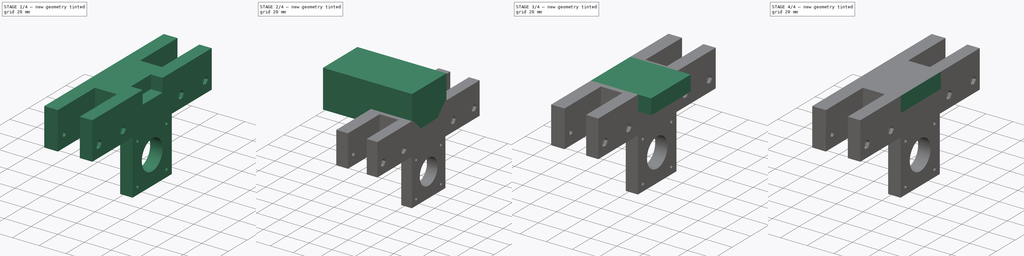
[diagram: build sequence overview — one tinted view per stage of 4, left to right]
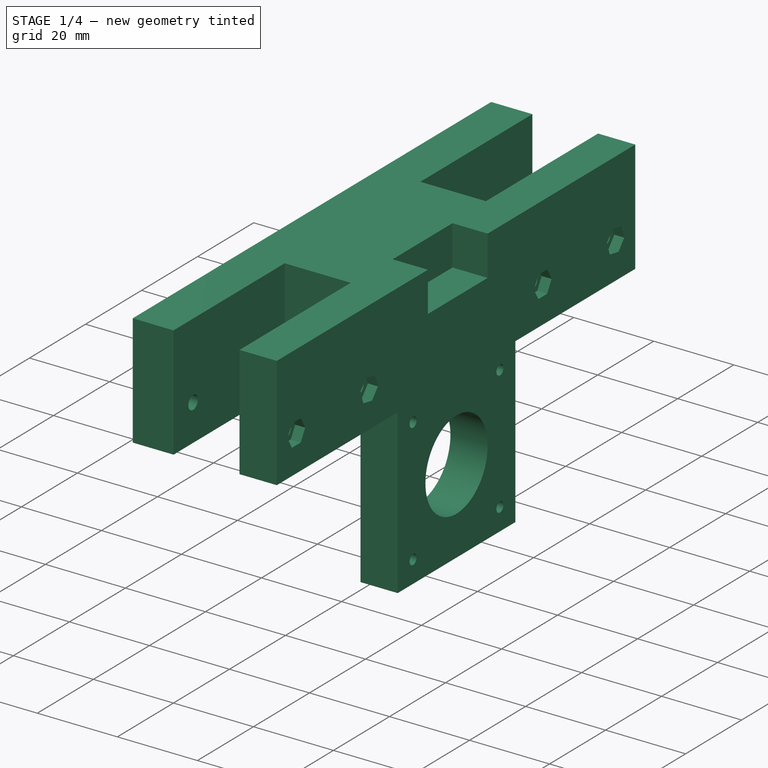
[diagram: stage 1 of 4 — iso view after this stage's code; geometry added in this stage tinted green]
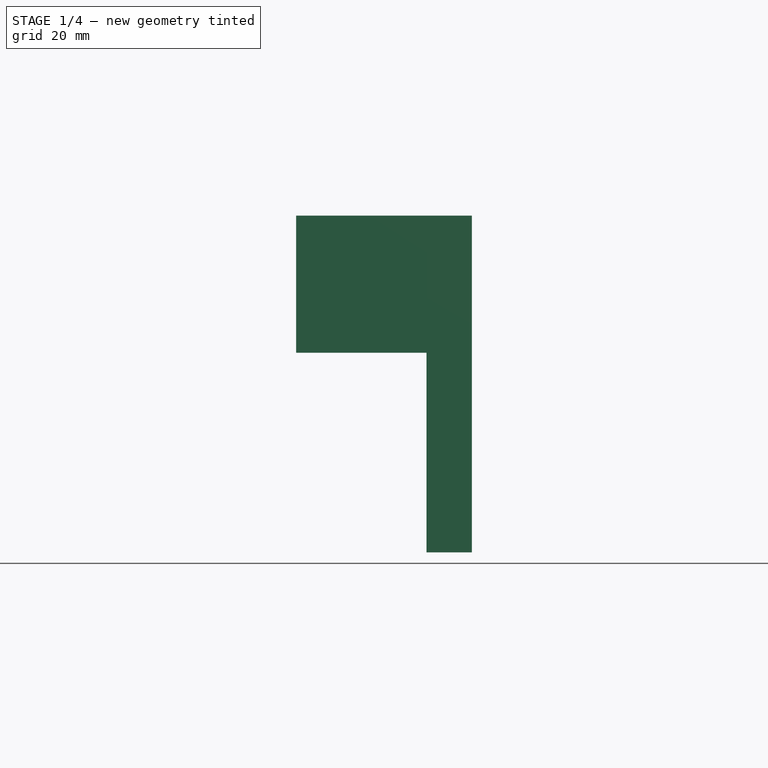
[diagram: stage 1 of 4 — front view after this stage's code; geometry added in this stage tinted green]
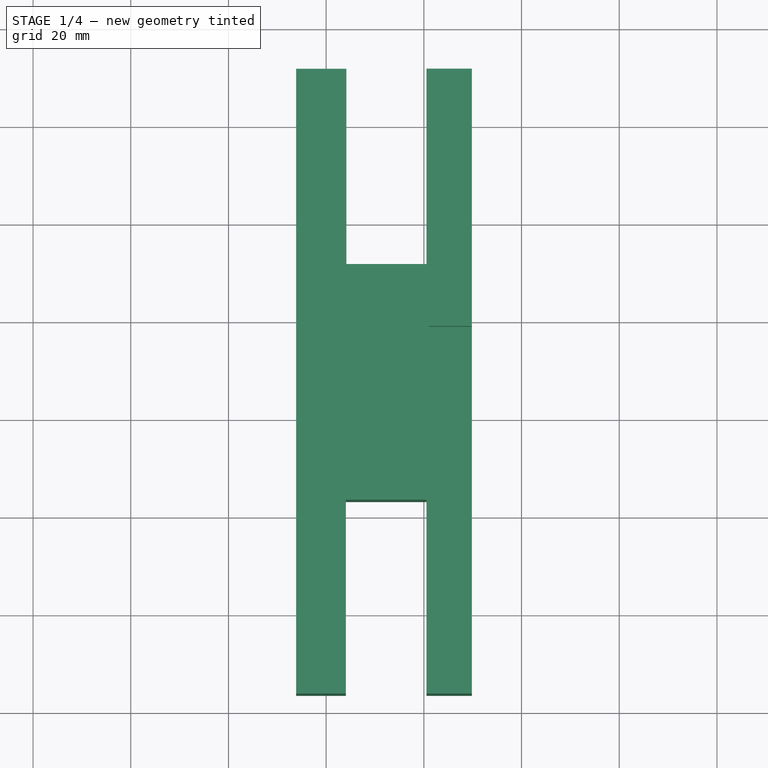
[diagram: stage 1 of 4 — top view after this stage's code; geometry added in this stage tinted green]
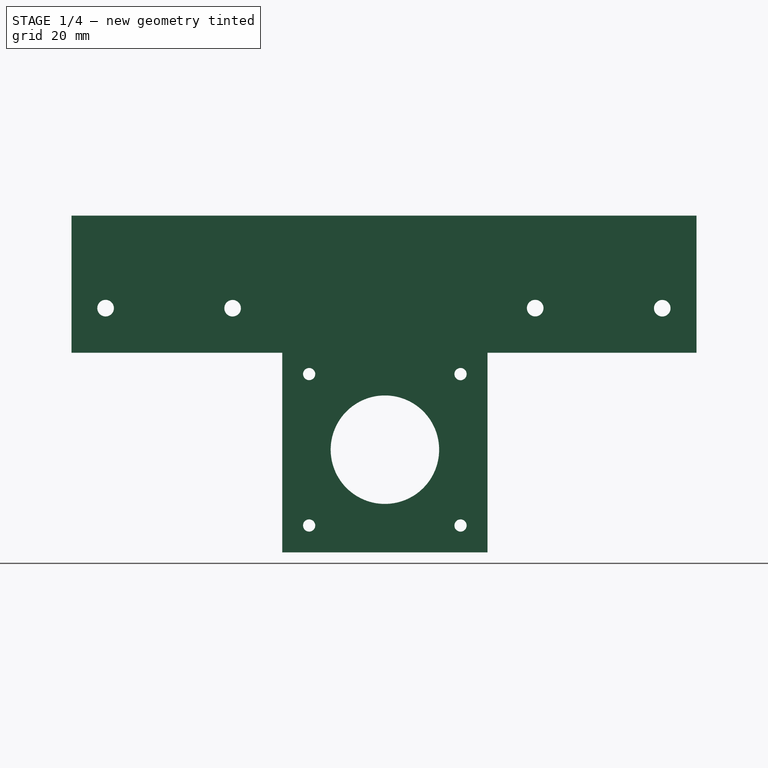
[diagram: stage 1 of 4 — right view after this stage's code; geometry added in this stage tinted green]
FCSTD DOCUMENT  (FreeCAD 0.21R33668 +26 (Git))
Label: Leadscrew_mount_back
License: All rights reserved
LicenseURL: http://en.wikipedia.org/wiki/All_rights_reserved
objects: PartDesign::Pocket×7, PartDesign::Pad×4, Sketcher::SketchObject×2, Part::Feature×1, PartDesign::FeatureBase×1, PartDesign::Chamfer×1, PartDesign::Body×1
note: 29 computed .brp shape members not serialized (recipe doc carries the construction recipe); baked Part::Feature solids carry a one-line shape summary decoded from their .brp

FEATURE [Part::Feature] Pad001
  shape: bbox 36 x 128.1 x 66.91 mm, 72 faces (baked)
FEATURE [PartDesign::FeatureBase] BaseFeature
  BaseFeature = -> Pad001
FEATURE [PartDesign::Pad] Pad
  BaseFeature = -> BaseFeature
  Direction = (0,0,4606.84)
  Length = 10
  Length2 = 10
  Profile = -> BaseFeature [Face7]
  Refine = true
  Type = 0
FEATURE [Sketcher::SketchObject] Sketch
  FullyConstrained = false
  MapMode = 5
  Placement = pos=(0,0,32.566) rot=(0,0,1;0rad)
  sketch-geometry (4):
    g0: LineSegment StartX=56.3807 StartY=-43.223 StartZ=0 EndX=56.3807 EndY=-21.8929 EndZ=0
    g1: LineSegment StartX=56.3807 StartY=-21.8929 StartZ=0 EndX=41.0405 EndY=-21.8929 EndZ=0
    g2: LineSegment StartX=41.0405 StartY=-21.8929 StartZ=0 EndX=41.0405 EndY=-43.223 EndZ=0
    g3: LineSegment StartX=41.0405 StartY=-43.223 StartZ=0 EndX=56.3807 EndY=-43.223 EndZ=0
  constraints (8):
    c: Coincident(g0,g1)
    c: Coincident(g1,g2)
    c: Coincident(g2,g3)
    c: Coincident(g3,g0)
    c: Vertical(g0)
    c: Vertical(g2)
    c: Horizontal(g1)
    c: Horizontal(g3)
FEATURE [PartDesign::Pocket] Pocket
  BaseFeature = -> Pad
  Direction = (0,0,-1)
  Length = 10
  Length2 = 5
  Profile = -> Sketch
  ReferenceAxis = -> Sketch [N_Axis]
  Refine = true
  Reversed = true
  Type = 0
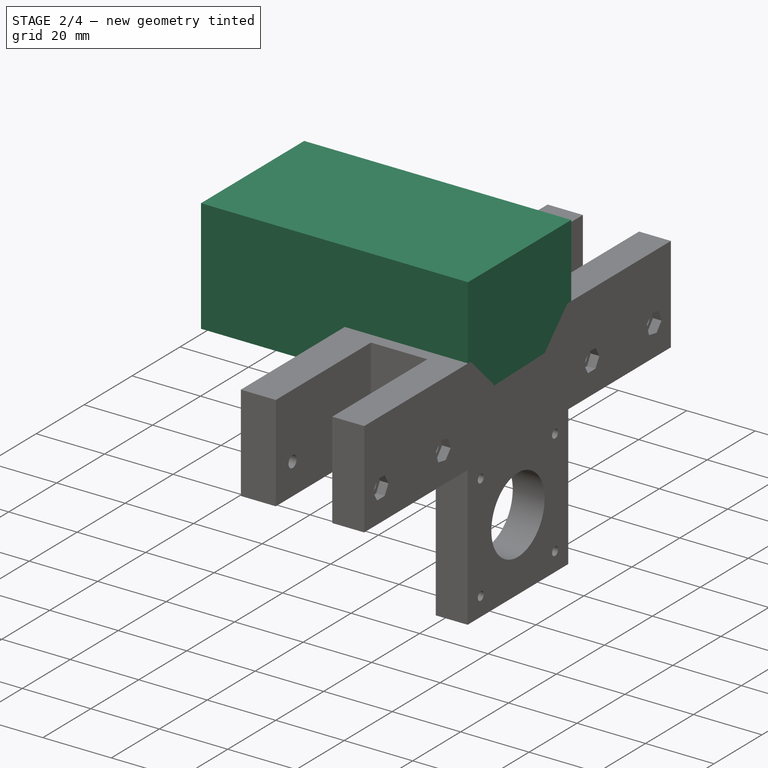
[diagram: stage 2 of 4 — iso view after this stage's code; geometry added in this stage tinted green]
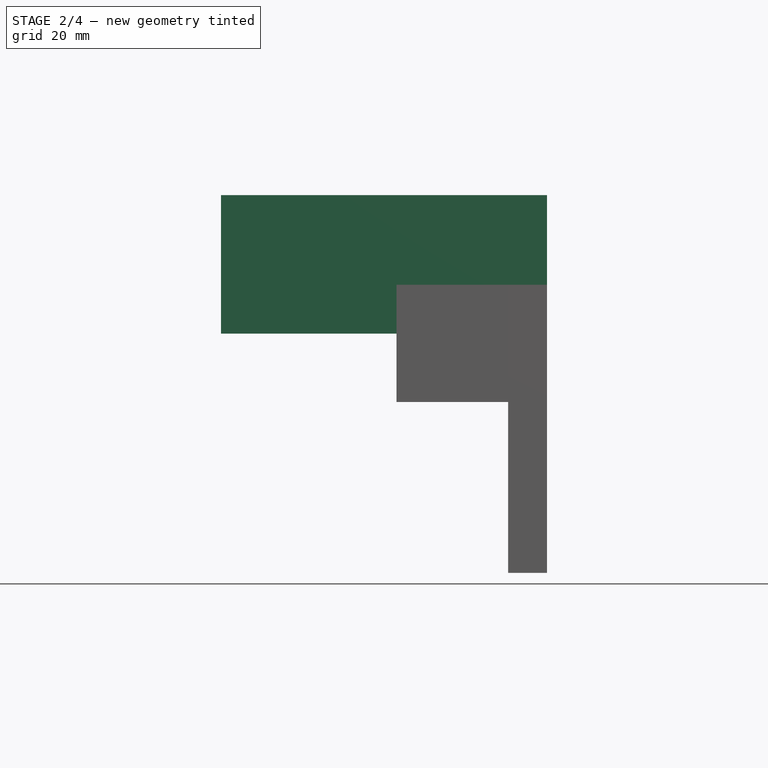
[diagram: stage 2 of 4 — front view after this stage's code; geometry added in this stage tinted green]
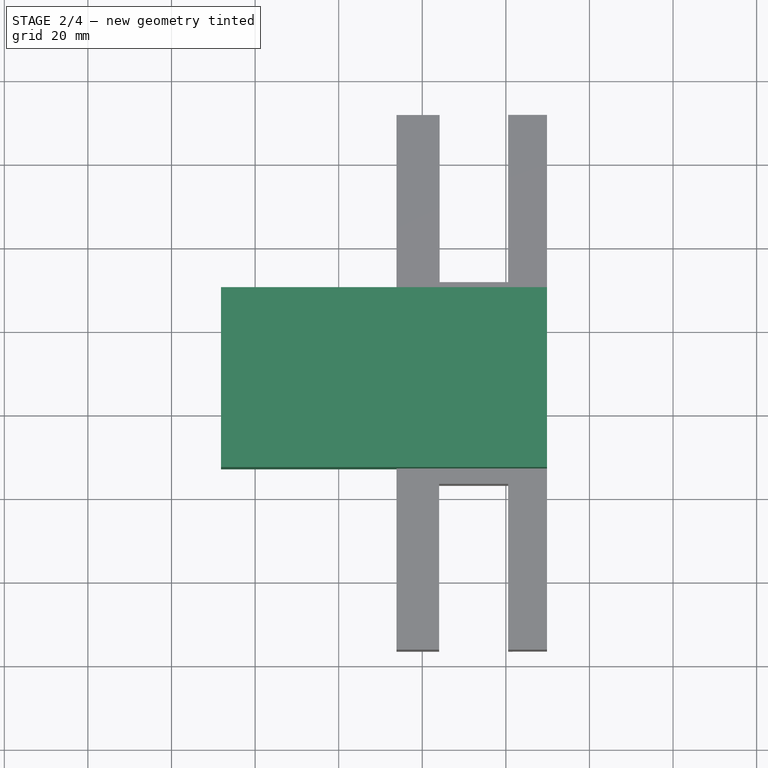
[diagram: stage 2 of 4 — top view after this stage's code; geometry added in this stage tinted green]
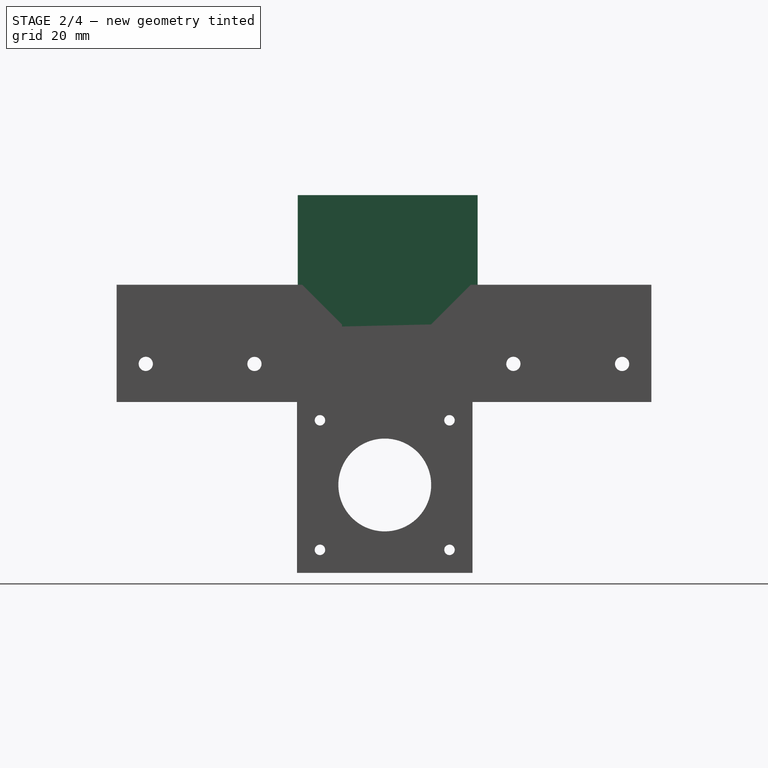
[diagram: stage 2 of 4 — right view after this stage's code; geometry added in this stage tinted green]
FEATURE [PartDesign::Pocket] Pocket001
  BaseFeature = -> Pocket
  Direction = (-1,0,0)
  Length = 34
  Length2 = 5
  Profile = -> Pocket [Face83]
  Refine = true
  Type = 0
FEATURE [PartDesign::Chamfer] Chamfer
  Angle = 45
  Base = -> Pocket001 [Edge135,Edge146]
  BaseFeature = -> Pocket001
  ChamferType = 0
  FlipDirection = false
  Refine = true
  Size = 9.5
  Size2 = 1
  SupportTransform = false
  UseAllEdges = false
FEATURE [Sketcher::SketchObject] Sketch001
  FullyConstrained = false
  MapMode = 5
  Placement = pos=(49.8422,0,0) rot=(0.57735,0.57735,0.57735;2.0944rad)
  Support = -> [Chamfer]
  sketch-geometry (4):
    g0: LineSegment StartX=-53.8184 StartY=30.8514 StartZ=0 EndX=-10.7748 EndY=30.8514 EndZ=0
    g1: LineSegment StartX=-10.7748 StartY=30.8514 StartZ=0 EndX=-10.7748 EndY=63.992 EndZ=0
    g2: LineSegment StartX=-10.7748 StartY=63.992 StartZ=0 EndX=-53.8184 EndY=63.992 EndZ=0
    g3: LineSegment StartX=-53.8184 StartY=63.992 StartZ=0 EndX=-53.8184 EndY=30.8514 EndZ=0
  constraints (8):
    c: Coincident(g0,g1)
    c: Coincident(g1,g2)
    c: Coincident(g2,g3)
    c: Coincident(g3,g0)
    c: Horizontal(g0)
    c: Horizontal(g2)
    c: Vertical(g1)
    c: Vertical(g3)
FEATURE [PartDesign::Pad] Pad002
  BaseFeature = -> Chamfer
  Direction = (1,0,0)
  Length = 78
  Length2 = 10
  Profile = -> Sketch001
  ReferenceAxis = -> Sketch001 [N_Axis]
  Reversed = true
  Type = 0
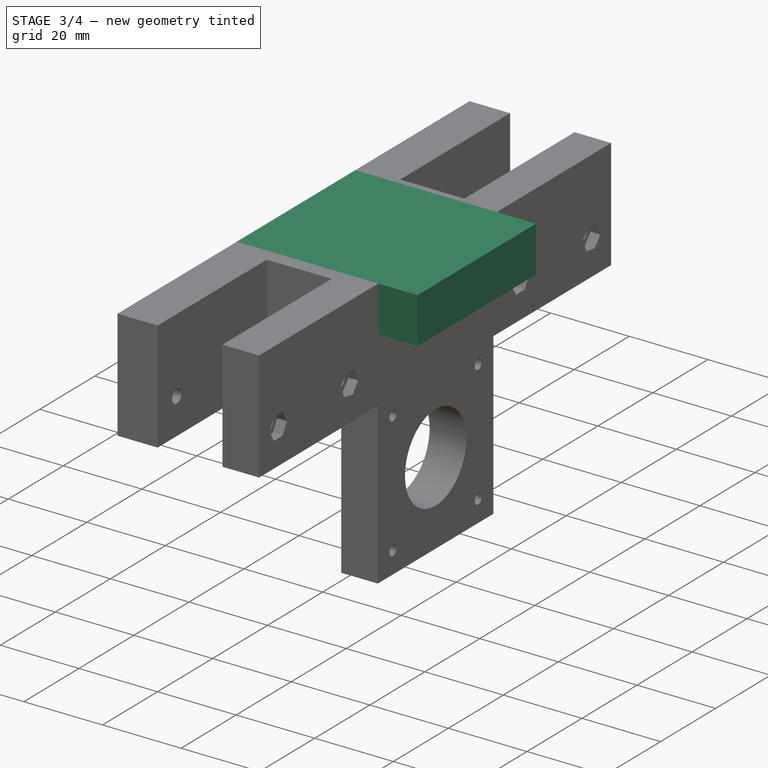
[diagram: stage 3 of 4 — iso view after this stage's code; geometry added in this stage tinted green]
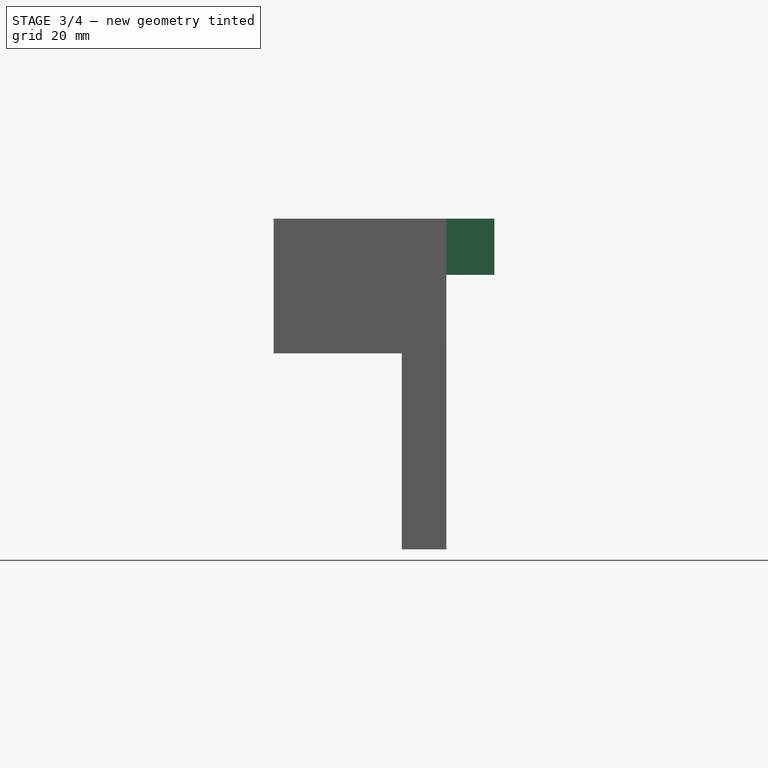
[diagram: stage 3 of 4 — front view after this stage's code; geometry added in this stage tinted green]
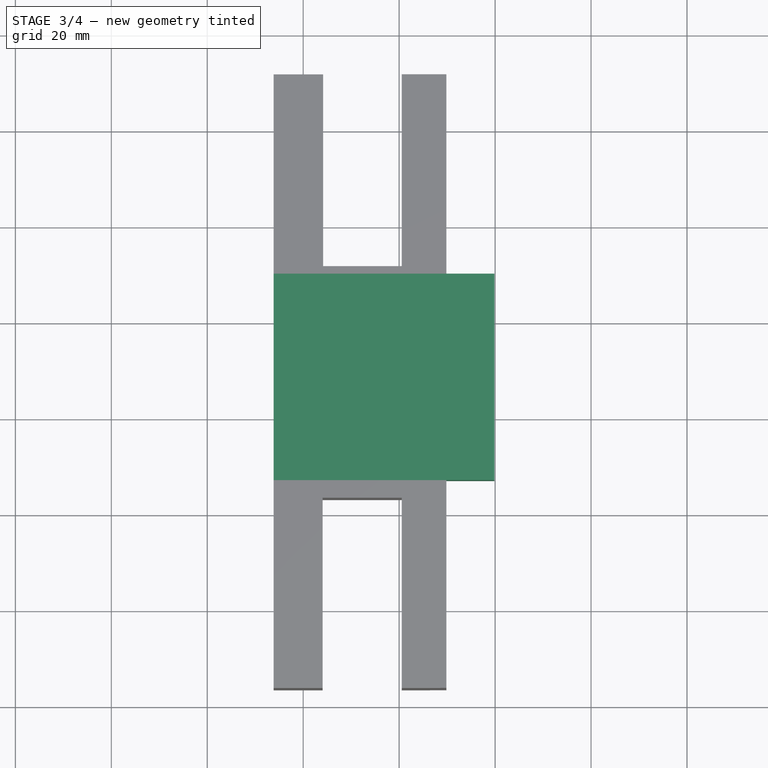
[diagram: stage 3 of 4 — top view after this stage's code; geometry added in this stage tinted green]
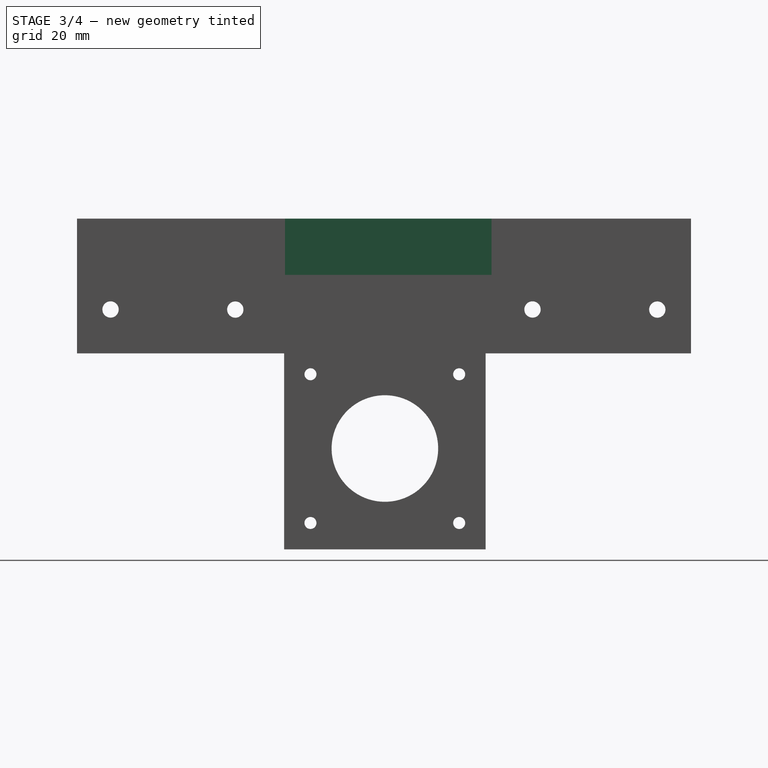
[diagram: stage 3 of 4 — right view after this stage's code; geometry added in this stage tinted green]
FEATURE [PartDesign::Pocket] Pocket002
  BaseFeature = -> Pad002
  Direction = (0,0,1)
  Length = 97
  Length2 = 5
  Profile = -> Pad002 [Face15]
  Type = 0
FEATURE [PartDesign::Pocket] Pocket003
  BaseFeature = -> Pocket002
  Direction = (0,1,0)
  Length = 153
  Length2 = 5
  Profile = -> Pocket002 [Face5]
  Type = 0
FEATURE [PartDesign::Pocket] Pocket004
  BaseFeature = -> Pocket003
  Direction = (-1,0,0)
  Length = 5
  Length2 = 5
  Profile = -> Pocket003 [Face11]
  Type = 0
FEATURE [PartDesign::Pad] Pad003
  BaseFeature = -> Pocket004
  Direction = (8560.36,0,0)
  Length = 10
  Length2 = 10
  Profile = -> Pocket004 [Face3,Face6,Face2,Face1]
  Type = 0
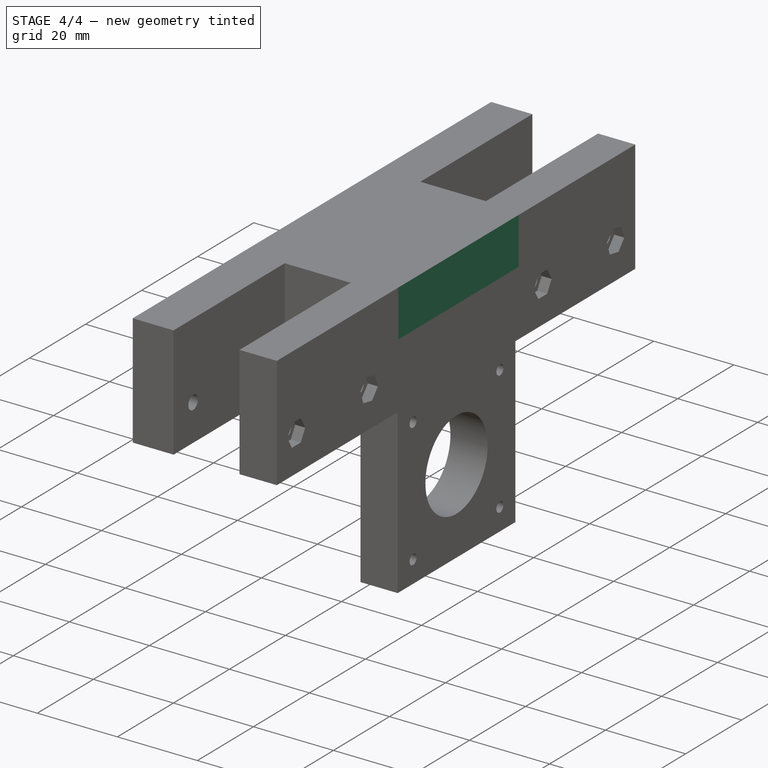
[diagram: stage 4 of 4 — iso view after this stage's code; geometry added in this stage tinted green]
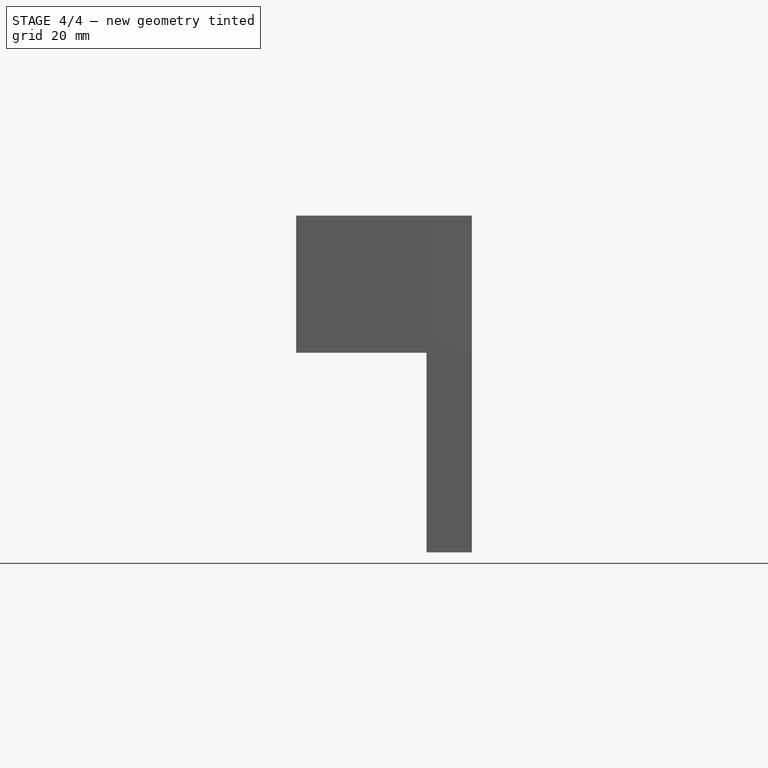
[diagram: stage 4 of 4 — front view after this stage's code; geometry added in this stage tinted green]
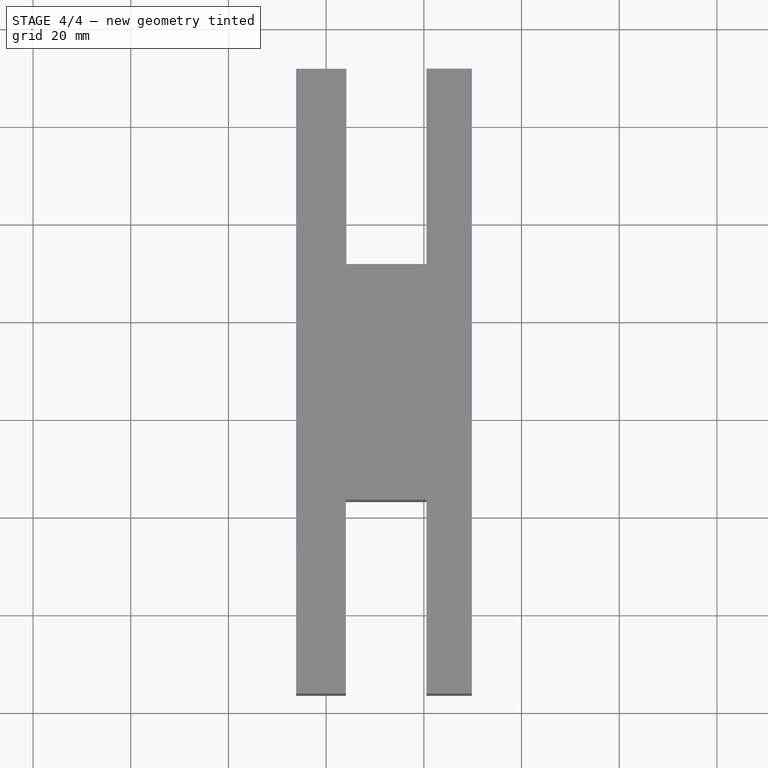
[diagram: stage 4 of 4 — top view after this stage's code; geometry added in this stage tinted green]
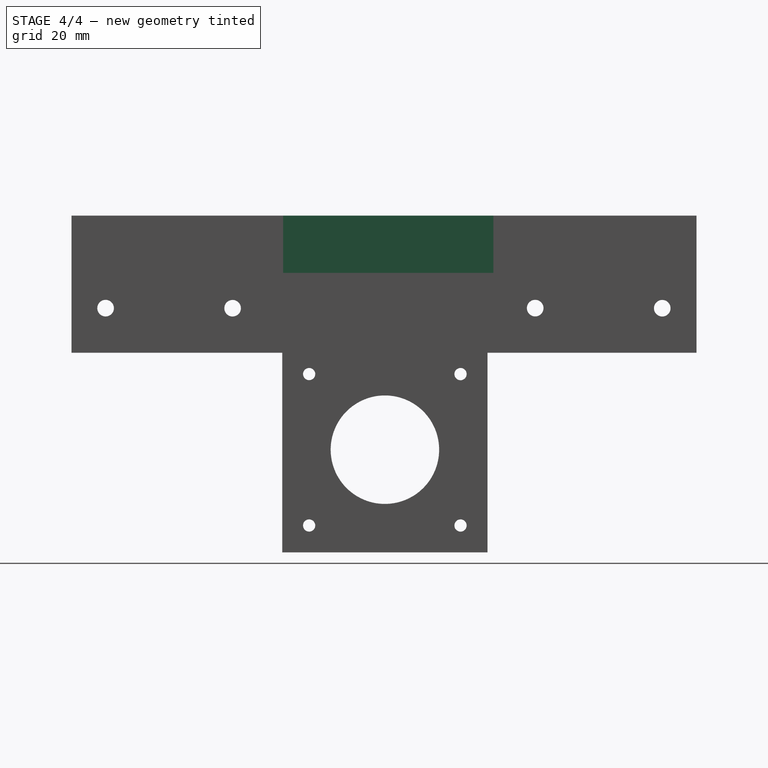
[diagram: stage 4 of 4 — right view after this stage's code; geometry added in this stage tinted green]
FEATURE [PartDesign::Pocket] Pocket005
  BaseFeature = -> Pad003
  Direction = (0,-1,0)
  Length = 371
  Length2 = 321
  Profile = -> Pad003 [Face2,Face6]
  Type = 4
FEATURE [PartDesign::Pad] Pad004
  BaseFeature = -> Pocket005
  Direction = (8560.36,0,0)
  Length = 10
  Length2 = 10
  Profile = -> Pocket005 [Face10]
  Type = 0
FEATURE [PartDesign::Pocket] Pocket006
  BaseFeature = -> Pad004
  Direction = (0,-4e-16,1)
  Length = 101
  Length2 = 233
  Profile = -> Pad004 [Face49,Face37,Face50,Face51]
  Refine = true
  Type = 4
FEATURE [PartDesign::Body] Body
  BaseFeature = -> Pad001
  Group = -> [BaseFeature,Pad,Sketch,Pocket,Pocket001,Chamfer,Sketch001,Pad002,Pocket002,Pocket003,Pocket004,Pad003,Pocket005,Pad004,Pocket006]
  Origin = -> Origin
  Tip = -> Pocket006
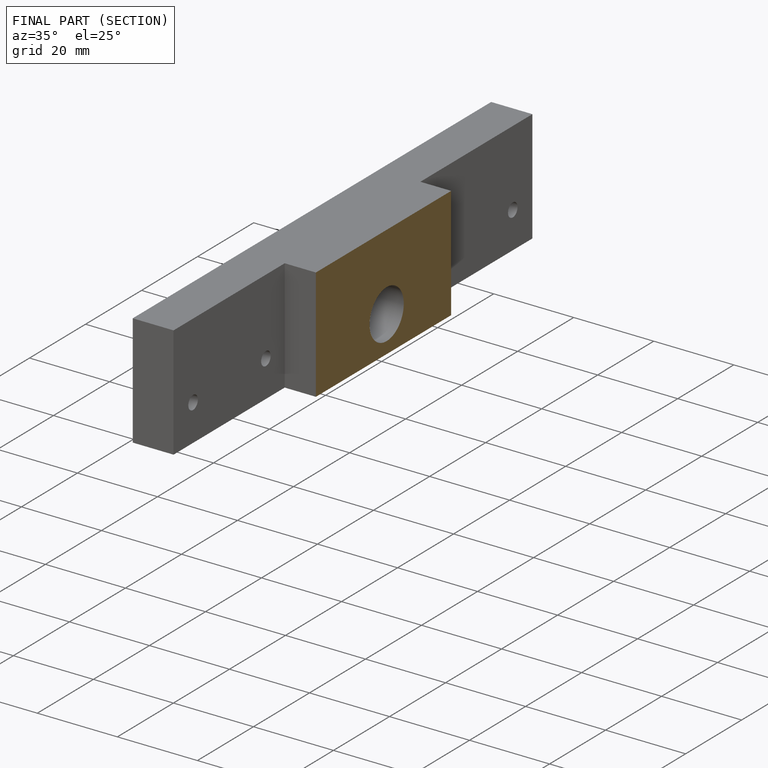
[diagram: finished part — half-section view (interior)]
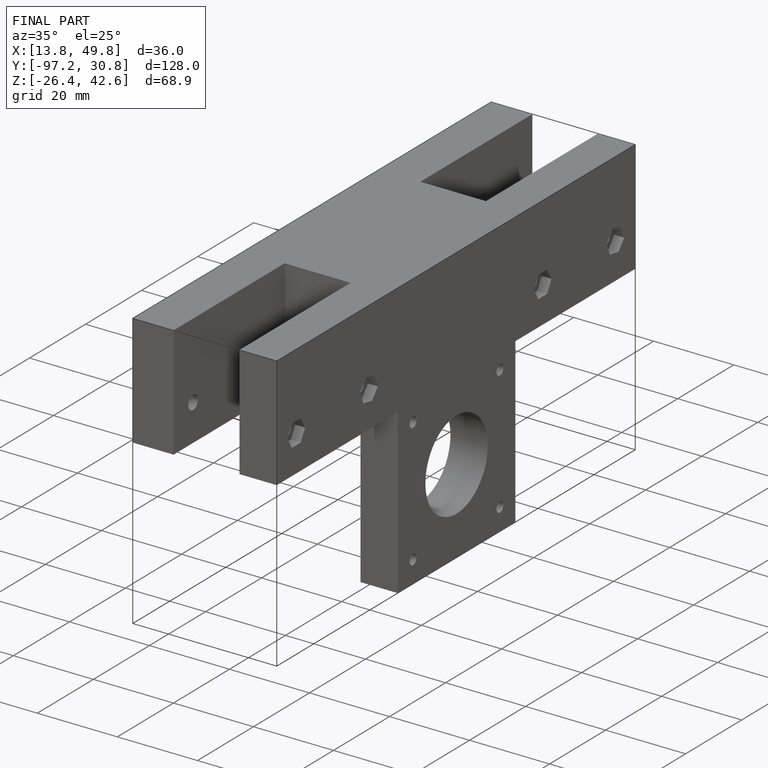
[diagram: finished part — iso view with bounding-box wireframe]
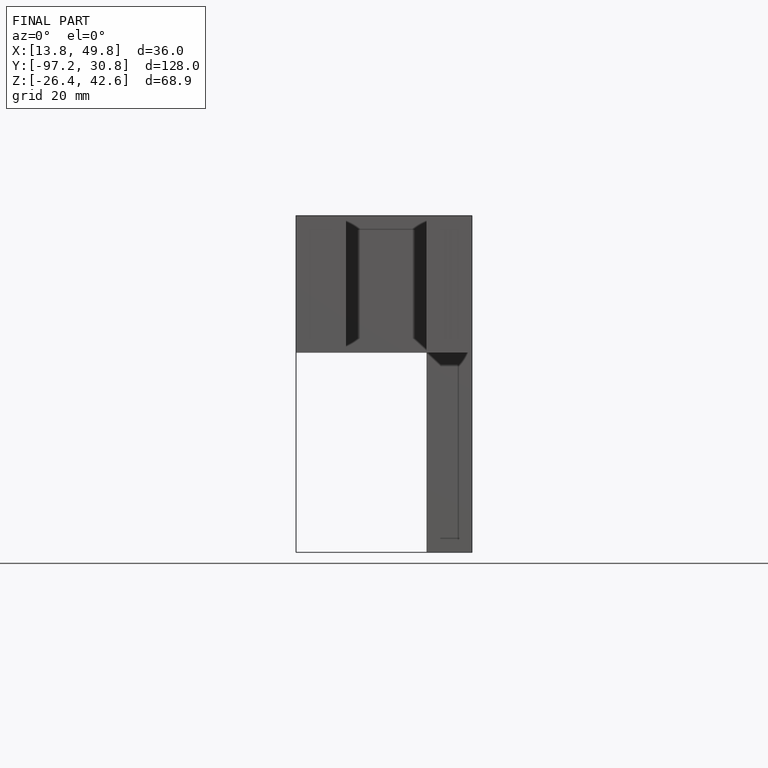
[diagram: finished part — front view with bounding-box wireframe]
